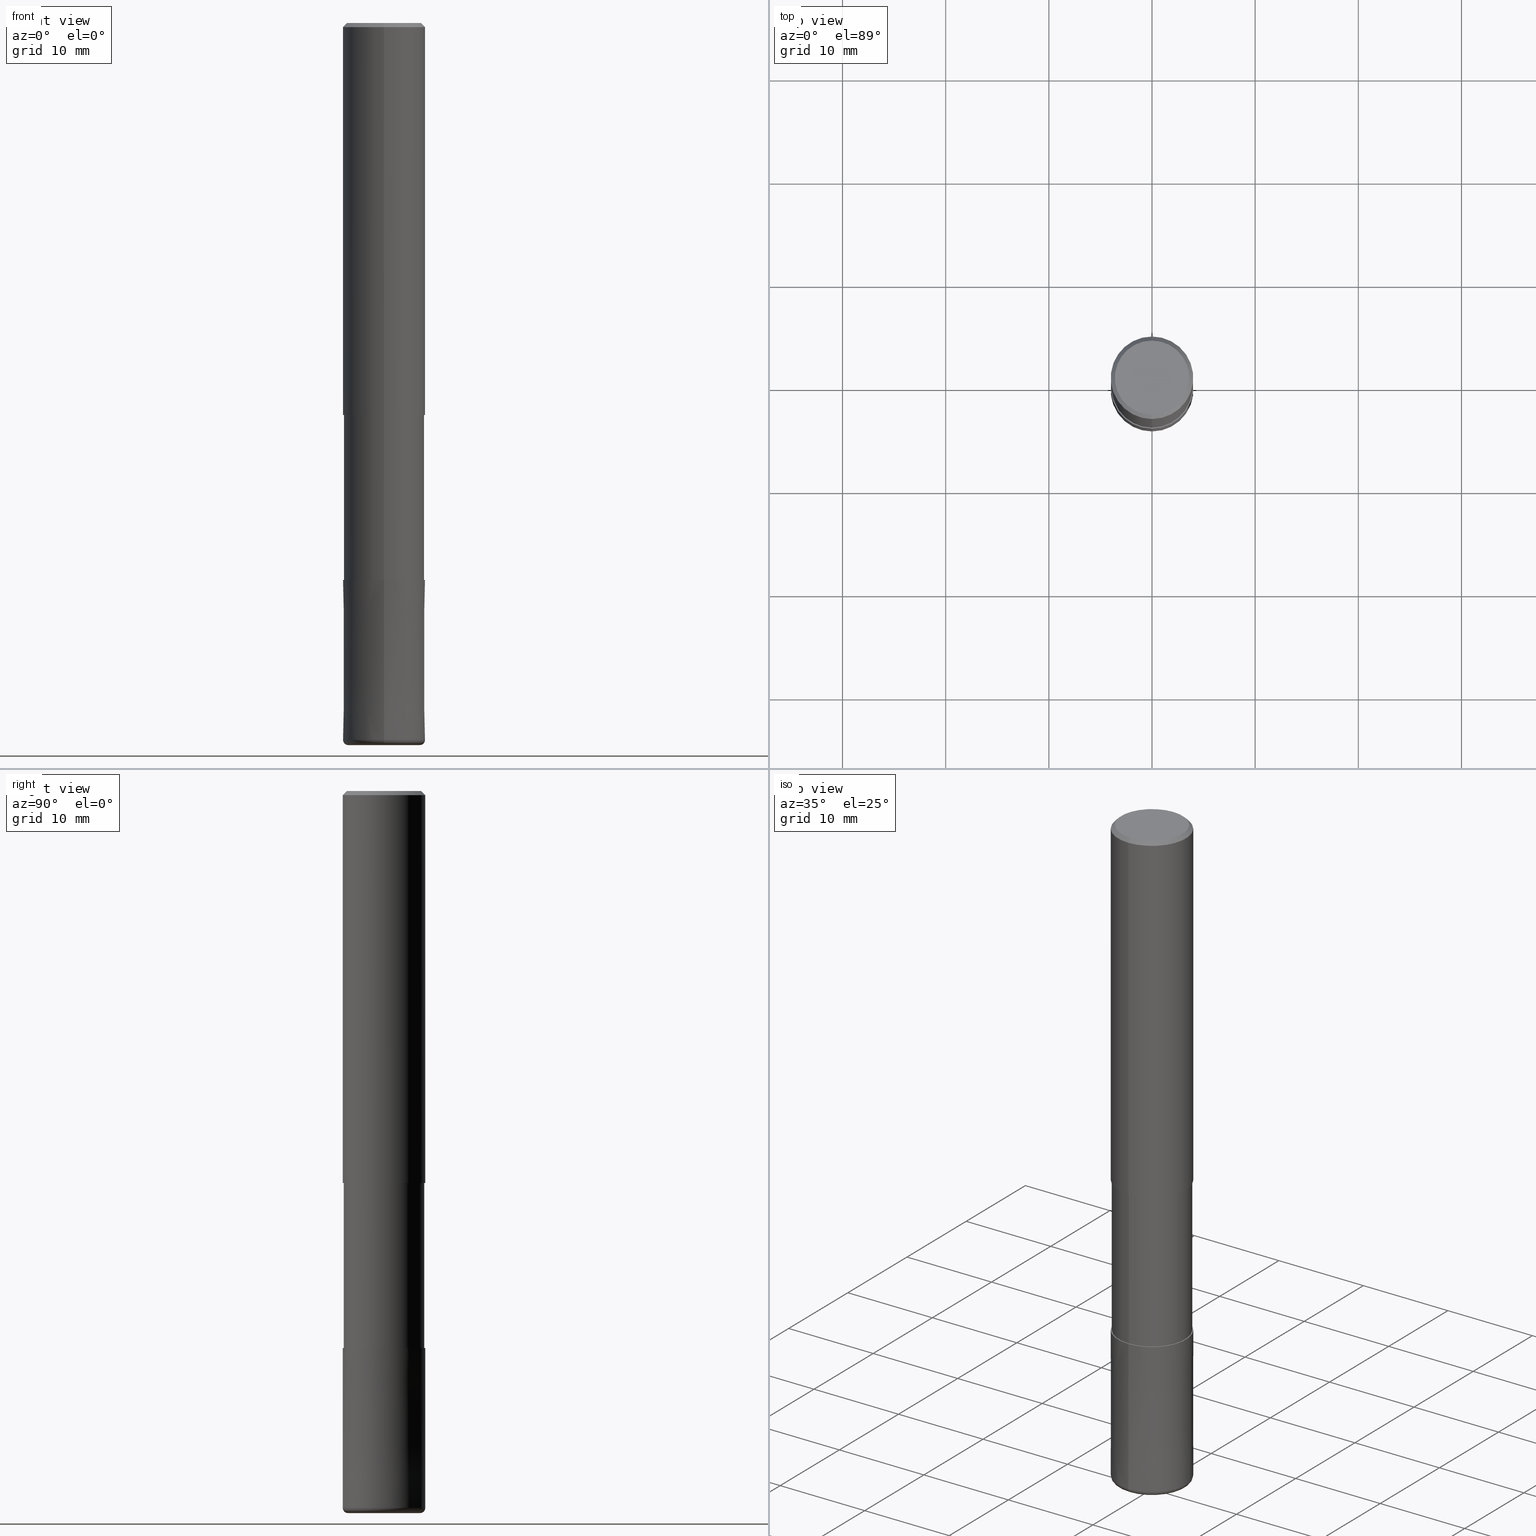
[diagram: canonical four-view strip — front | top / right | iso, engineering-drawing reading convention]
A machine part, canonical four-view strip (front | top / right | iso — engineering-drawing reading convention). The complete STEP part file that produces these views, byte-faithful:
ISO-10303-21;
HEADER;
FILE_DESCRIPTION(('no description'),'unknown implementation level');
FILE_NAME('CXLRS5080-05-32-Huellk.stp','  ',('CIMSOURCE GmbH'),('CADClick - KiM GmbH - www.kimweb.de'),'unknown preprocess','ACIS','unknown authorization');
FILE_SCHEMA(('automotive_design'));
ENDSEC;
DATA;
#1=MECHANICAL_DESIGN_GEOMETRIC_PRESENTATION_REPRESENTATION(' ',(#14,#15,#16,#17,#18,#19,#20,#21,#22,#23,#24,#25,#26,#27,#28,#29,#30,#31,#32,#33,#34,#35,#36,#37,#38,#39,#40,#41,#42,#43,#44,#45,#46,#47,#48,#49,#50,#51,#52,#53,#54,#55,#56,#57,#58,#59,#60,#61,#62,#63,#64,#65,#66,#67,#68,#69,#70,#71,#72,#73,#74,#75,#76,#77,#78,#79,#80,#81,#82,#83,#84,#85,#86,#87,#88,#89,#90,#91,#92,#93,#94,#95,#96,#97),#10);
#2=PRODUCT_DEFINITION_CONTEXT('',#98,'design');
#3=APPLICATION_PROTOCOL_DEFINITION('INTERNATIONAL STANDARD','automotive_design',1994,#98);
#4=PRODUCT_CATEGORY_RELATIONSHIP('NONE','NONE',#99,#100);
#5=SHAPE_DEFINITION_REPRESENTATION(#101,#102);
#6=PRODUCT_DEFINITION_CONTEXT('',#103,'design');
#7=APPLICATION_PROTOCOL_DEFINITION('INTERNATIONAL STANDARD','automotive_design',1994,#103);
#8=PRODUCT_CATEGORY_RELATIONSHIP('NONE','NONE',#104,#105);
#9=SHAPE_DEFINITION_REPRESENTATION(#106,#107);
#10= (GEOMETRIC_REPRESENTATION_CONTEXT(3)GLOBAL_UNCERTAINTY_ASSIGNED_CONTEXT((#110))GLOBAL_UNIT_ASSIGNED_CONTEXT((#112,#113,#114))REPRESENTATION_CONTEXT('NONE','WORKSPACE'));
#14=STYLED_ITEM('',(#116),#117);
#15=STYLED_ITEM('',(#118),#119);
#16=STYLED_ITEM('',(#120),#121);
#17=STYLED_ITEM('',(#122),#123);
#18=STYLED_ITEM('',(#124),#125);
#19=STYLED_ITEM('',(#126),#127);
#20=STYLED_ITEM('',(#128),#129);
#21=STYLED_ITEM('',(#130),#131);
#22=STYLED_ITEM('',(#132),#133);
#23=STYLED_ITEM('',(#134),#135);
#24=STYLED_ITEM('',(#136),#137);
#25=STYLED_ITEM('',(#138),#139);
#26=STYLED_ITEM('',(#140),#141);
#27=STYLED_ITEM('',(#142),#143);
#28=STYLED_ITEM('',(#144),#145);
#29=STYLED_ITEM('',(#146),#147);
#30=STYLED_ITEM('',(#148),#149);
#31=STYLED_ITEM('',(#150),#151);
#32=STYLED_ITEM('',(#152),#153);
#33=STYLED_ITEM('',(#154),#155);
#34=STYLED_ITEM('',(#156),#157);
#35=STYLED_ITEM('',(#158),#159);
#36=STYLED_ITEM('',(#160),#161);
#37=STYLED_ITEM('',(#162),#163);
#38=STYLED_ITEM('',(#164),#165);
#39=STYLED_ITEM('',(#166),#167);
#40=STYLED_ITEM('',(#168),#169);
#41=STYLED_ITEM('',(#170),#171);
#42=STYLED_ITEM('',(#172),#173);
#43=STYLED_ITEM('',(#174),#175);
#44=STYLED_ITEM('',(#176),#177);
#45=STYLED_ITEM('',(#178),#179);
#46=STYLED_ITEM('',(#180),#181);
#47=STYLED_ITEM('',(#182),#183);
#48=STYLED_ITEM('',(#184),#185);
#49=STYLED_ITEM('',(#186),#187);
#50=STYLED_ITEM('',(#188),#189);
#51=STYLED_ITEM('',(#190),#191);
#52=STYLED_ITEM('',(#192),#193);
#53=STYLED_ITEM('',(#194),#195);
#54=STYLED_ITEM('',(#196),#197);
#55=STYLED_ITEM('',(#198),#199);
#56=STYLED_ITEM('',(#200),#201);
#57=STYLED_ITEM('',(#202),#203);
#58=STYLED_ITEM('',(#204),#205);
#59=STYLED_ITEM('',(#206),#207);
#60=STYLED_ITEM('',(#208),#209);
#61=STYLED_ITEM('',(#210),#211);
#62=STYLED_ITEM('',(#212),#213);
#63=STYLED_ITEM('',(#214),#215);
#64=STYLED_ITEM('',(#216),#217);
#65=STYLED_ITEM('',(#218),#219);
#66=STYLED_ITEM('',(#220),#221);
#67=STYLED_ITEM('',(#222),#223);
#68=STYLED_ITEM('',(#224),#225);
#69=STYLED_ITEM('',(#226),#227);
#70=STYLED_ITEM('',(#228),#229);
#71=STYLED_ITEM('',(#230),#231);
#72=STYLED_ITEM('',(#232),#233);
#73=STYLED_ITEM('',(#234),#235);
#74=STYLED_ITEM('',(#236),#237);
#75=STYLED_ITEM('',(#238),#239);
#76=STYLED_ITEM('',(#240),#241);
#77=STYLED_ITEM('',(#242),#243);
#78=STYLED_ITEM('',(#244),#245);
#79=STYLED_ITEM('',(#246),#247);
#80=STYLED_ITEM('',(#248),#249);
#81=STYLED_ITEM('',(#250),#251);
#82=STYLED_ITEM('',(#252),#253);
#83=STYLED_ITEM('',(#254),#255);
#84=STYLED_ITEM('',(#256),#257);
#85=STYLED_ITEM('',(#258),#259);
#86=STYLED_ITEM('',(#260),#261);
#87=STYLED_ITEM('',(#262),#263);
#88=STYLED_ITEM('',(#264),#265);
#89=STYLED_ITEM('',(#266),#267);
#90=STYLED_ITEM('',(#268),#269);
#91=STYLED_ITEM('',(#270),#271);
#92=STYLED_ITEM('',(#272),#273);
#93=STYLED_ITEM('',(#274),#275);
#94=STYLED_ITEM('',(#276),#277);
#95=STYLED_ITEM('',(#278),#279);
#96=STYLED_ITEM('',(#280),#281);
#97=STYLED_ITEM('',(#282),#283);
#98=APPLICATION_CONTEXT(' ');
#99=PRODUCT_CATEGORY('part','NONE');
#100=PRODUCT_RELATED_PRODUCT_CATEGORY('detail',' ',(#284));
#101=PRODUCT_DEFINITION_SHAPE('NONE','NONE',#285);
#102=ADVANCED_BREP_SHAPE_REPRESENTATION('1',(#173,#286),#10);
#103=APPLICATION_CONTEXT(' ');
#104=PRODUCT_CATEGORY('part','NONE');
#105=PRODUCT_RELATED_PRODUCT_CATEGORY('detail',' ',(#287));
#106=PRODUCT_DEFINITION_SHAPE('NONE','NONE',#288);
#107=ADVANCED_BREP_SHAPE_REPRESENTATION('2',(#147,#289),#10);
#110=UNCERTAINTY_MEASURE_WITH_UNIT(LENGTH_MEASURE(1.0E-006),#112,'','');
#112= (CONVERSION_BASED_UNIT('MILLIMETRE',#292)LENGTH_UNIT()NAMED_UNIT(#295));
#113= (NAMED_UNIT(#297)PLANE_ANGLE_UNIT()SI_UNIT($,.RADIAN.));
#114= (NAMED_UNIT(#297)SOLID_ANGLE_UNIT()SI_UNIT($,.STERADIAN.));
#116=PRESENTATION_STYLE_ASSIGNMENT((#303));
#117=VERTEX_POINT('',#304);
#118=PRESENTATION_STYLE_ASSIGNMENT((#305));
#119=EDGE_CURVE('',#149,#197,#306,.T.);
#120=PRESENTATION_STYLE_ASSIGNMENT((#307));
#121=ADVANCED_FACE('',(#308),#309,.T.);
#122=PRESENTATION_STYLE_ASSIGNMENT((#310));
#123=VERTEX_POINT('',#311);
#124=PRESENTATION_STYLE_ASSIGNMENT((#312));
#125=VERTEX_POINT('',#313);
#126=PRESENTATION_STYLE_ASSIGNMENT((#314));
#127=VERTEX_POINT('',#315);
#128=PRESENTATION_STYLE_ASSIGNMENT((#316));
#129=VERTEX_POINT('',#317);
#130=PRESENTATION_STYLE_ASSIGNMENT((#318));
#131=EDGE_CURVE('',#279,#257,#319,.T.);
#132=PRESENTATION_STYLE_ASSIGNMENT((#320));
#133=ADVANCED_FACE('',(#321),#322,.T.);
#134=PRESENTATION_STYLE_ASSIGNMENT((#323));
#135=EDGE_CURVE('',#145,#239,#324,.T.);
#136=PRESENTATION_STYLE_ASSIGNMENT((#325));
#137=EDGE_CURVE('',#239,#231,#326,.T.);
#138=PRESENTATION_STYLE_ASSIGNMENT((#327));
#139=ADVANCED_FACE('',(#328),#329,.T.);
#140=PRESENTATION_STYLE_ASSIGNMENT((#330));
#141=EDGE_CURVE('',#227,#273,#331,.T.);
#142=PRESENTATION_STYLE_ASSIGNMENT((#332));
#143=EDGE_CURVE('',#153,#271,#333,.T.);
#144=PRESENTATION_STYLE_ASSIGNMENT((#334));
#145=VERTEX_POINT('',#335);
#146=PRESENTATION_STYLE_ASSIGNMENT((#336));
#147=MANIFOLD_SOLID_BREP('2',#337);
#148=PRESENTATION_STYLE_ASSIGNMENT((#338));
#149=VERTEX_POINT('',#339);
#150=PRESENTATION_STYLE_ASSIGNMENT((#340));
#151=ADVANCED_FACE('',(#341),#342,.T.);
#152=PRESENTATION_STYLE_ASSIGNMENT((#343));
#153=VERTEX_POINT('',#344);
#154=PRESENTATION_STYLE_ASSIGNMENT((#345));
#155=EDGE_CURVE('',#125,#123,#346,.T.);
#156=PRESENTATION_STYLE_ASSIGNMENT((#347));
#157=EDGE_CURVE('',#123,#117,#348,.T.);
#158=PRESENTATION_STYLE_ASSIGNMENT((#349));
#159=EDGE_CURVE('',#153,#197,#350,.T.);
#160=PRESENTATION_STYLE_ASSIGNMENT((#351));
#161=EDGE_CURVE('',#277,#201,#352,.T.);
#162=PRESENTATION_STYLE_ASSIGNMENT((#353));
#163=VERTEX_POINT('',#354);
#164=PRESENTATION_STYLE_ASSIGNMENT((#355));
#165=EDGE_CURVE('',#227,#277,#356,.T.);
#166=PRESENTATION_STYLE_ASSIGNMENT((#357));
#167=EDGE_CURVE('',#231,#171,#358,.T.);
#168=PRESENTATION_STYLE_ASSIGNMENT((#359));
#169=EDGE_CURVE('',#149,#271,#360,.T.);
#170=PRESENTATION_STYLE_ASSIGNMENT((#361));
#171=VERTEX_POINT('',#362);
#172=PRESENTATION_STYLE_ASSIGNMENT((#363));
#173=MANIFOLD_SOLID_BREP('1',#364);
#174=PRESENTATION_STYLE_ASSIGNMENT((#365));
#175=EDGE_CURVE('',#279,#163,#366,.T.);
#176=PRESENTATION_STYLE_ASSIGNMENT((#367));
#177=ADVANCED_FACE('',(#368),#369,.T.);
#178=PRESENTATION_STYLE_ASSIGNMENT((#370));
#179=ADVANCED_FACE('',(#371),#372,.T.);
#180=PRESENTATION_STYLE_ASSIGNMENT((#373));
#181=ADVANCED_FACE('',(#374),#375,.T.);
#182=PRESENTATION_STYLE_ASSIGNMENT((#376));
#183=EDGE_CURVE('',#129,#257,#377,.T.);
#184=PRESENTATION_STYLE_ASSIGNMENT((#378));
#185=EDGE_CURVE('',#197,#153,#379,.T.);
#186=PRESENTATION_STYLE_ASSIGNMENT((#380));
#187=EDGE_CURVE('',#211,#145,#381,.T.);
#188=PRESENTATION_STYLE_ASSIGNMENT((#382));
#189=EDGE_CURVE('',#129,#163,#383,.T.);
#190=PRESENTATION_STYLE_ASSIGNMENT((#384));
#191=ADVANCED_FACE('',(#385),#386,.T.);
#192=PRESENTATION_STYLE_ASSIGNMENT((#387));
#193=ADVANCED_FACE('',(#388),#389,.T.);
#194=PRESENTATION_STYLE_ASSIGNMENT((#390));
#195=ADVANCED_FACE('',(#391,#392),#393,.T.);
#196=PRESENTATION_STYLE_ASSIGNMENT((#394));
#197=VERTEX_POINT('',#395);
#198=PRESENTATION_STYLE_ASSIGNMENT((#396));
#199=EDGE_CURVE('',#127,#201,#397,.T.);
#200=PRESENTATION_STYLE_ASSIGNMENT((#398));
#201=VERTEX_POINT('',#399);
#202=PRESENTATION_STYLE_ASSIGNMENT((#400));
#203=EDGE_CURVE('',#273,#213,#401,.T.);
#204=PRESENTATION_STYLE_ASSIGNMENT((#402));
#205=EDGE_CURVE('',#277,#227,#403,.T.);
#206=PRESENTATION_STYLE_ASSIGNMENT((#404));
#207=EDGE_CURVE('',#127,#227,#405,.T.);
#208=PRESENTATION_STYLE_ASSIGNMENT((#406));
#209=ADVANCED_FACE('',(#407),#408,.F.);
#210=PRESENTATION_STYLE_ASSIGNMENT((#409));
#211=VERTEX_POINT('',#410);
#212=PRESENTATION_STYLE_ASSIGNMENT((#411));
#213=VERTEX_POINT('',#412);
#214=PRESENTATION_STYLE_ASSIGNMENT((#413));
#215=EDGE_CURVE('',#117,#123,#414,.T.);
#216=PRESENTATION_STYLE_ASSIGNMENT((#415));
#217=EDGE_CURVE('',#241,#239,#416,.T.);
#218=PRESENTATION_STYLE_ASSIGNMENT((#417));
#219=ADVANCED_FACE('',(#418),#419,.T.);
#220=PRESENTATION_STYLE_ASSIGNMENT((#420));
#221=EDGE_CURVE('',#145,#211,#421,.T.);
#222=PRESENTATION_STYLE_ASSIGNMENT((#422));
#223=ADVANCED_FACE('',(#423,#424),#425,.T.);
#224=PRESENTATION_STYLE_ASSIGNMENT((#426));
#225=ADVANCED_FACE('',(#427),#428,.T.);
#226=PRESENTATION_STYLE_ASSIGNMENT((#429));
#227=VERTEX_POINT('',#430);
#228=PRESENTATION_STYLE_ASSIGNMENT((#431));
#229=ADVANCED_FACE('',(#432),#433,.T.);
#230=PRESENTATION_STYLE_ASSIGNMENT((#434));
#231=VERTEX_POINT('',#435);
#232=PRESENTATION_STYLE_ASSIGNMENT((#436));
#233=EDGE_CURVE('',#231,#211,#437,.T.);
#234=PRESENTATION_STYLE_ASSIGNMENT((#438));
#235=EDGE_CURVE('',#257,#279,#439,.T.);
#236=PRESENTATION_STYLE_ASSIGNMENT((#440));
#237=ADVANCED_FACE('',(#441),#442,.T.);
#238=PRESENTATION_STYLE_ASSIGNMENT((#443));
#239=VERTEX_POINT('',#444);
#240=PRESENTATION_STYLE_ASSIGNMENT((#445));
#241=VERTEX_POINT('',#446);
#242=PRESENTATION_STYLE_ASSIGNMENT((#447));
#243=EDGE_CURVE('',#163,#129,#448,.T.);
#244=PRESENTATION_STYLE_ASSIGNMENT((#449));
#245=VERTEX_POINT('',#450);
#246=PRESENTATION_STYLE_ASSIGNMENT((#451));
#247=EDGE_CURVE('',#271,#149,#452,.T.);
#248=PRESENTATION_STYLE_ASSIGNMENT((#453));
#249=EDGE_CURVE('',#117,#245,#454,.T.);
#250=PRESENTATION_STYLE_ASSIGNMENT((#455));
#251=EDGE_CURVE('',#231,#239,#456,.T.);
#252=PRESENTATION_STYLE_ASSIGNMENT((#457));
#253=ADVANCED_FACE('',(#458),#459,.F.);
#254=PRESENTATION_STYLE_ASSIGNMENT((#460));
#255=ADVANCED_FACE('',(#461,#462),#463,.T.);
#256=PRESENTATION_STYLE_ASSIGNMENT((#464));
#257=VERTEX_POINT('',#465);
#258=PRESENTATION_STYLE_ASSIGNMENT((#466));
#259=ADVANCED_FACE('',(#467,#468),#469,.T.);
#260=PRESENTATION_STYLE_ASSIGNMENT((#470));
#261=EDGE_CURVE('',#245,#125,#471,.T.);
#262=PRESENTATION_STYLE_ASSIGNMENT((#472));
#263=EDGE_CURVE('',#213,#277,#473,.T.);
#264=PRESENTATION_STYLE_ASSIGNMENT((#474));
#265=EDGE_CURVE('',#241,#171,#475,.T.);
#266=PRESENTATION_STYLE_ASSIGNMENT((#476));
#267=ADVANCED_FACE('',(#477),#478,.T.);
#268=PRESENTATION_STYLE_ASSIGNMENT((#479));
#269=EDGE_CURVE('',#125,#245,#480,.T.);
#270=PRESENTATION_STYLE_ASSIGNMENT((#481));
#271=VERTEX_POINT('',#482);
#272=PRESENTATION_STYLE_ASSIGNMENT((#483));
#273=VERTEX_POINT('',#484);
#274=PRESENTATION_STYLE_ASSIGNMENT((#485));
#275=EDGE_CURVE('',#213,#273,#486,.T.);
#276=PRESENTATION_STYLE_ASSIGNMENT((#487));
#277=VERTEX_POINT('',#488);
#278=PRESENTATION_STYLE_ASSIGNMENT((#489));
#279=VERTEX_POINT('',#490);
#280=PRESENTATION_STYLE_ASSIGNMENT((#491));
#281=EDGE_CURVE('',#171,#241,#492,.T.);
#282=PRESENTATION_STYLE_ASSIGNMENT((#493));
#283=EDGE_CURVE('',#201,#127,#494,.T.);
#284=PRODUCT('1','1','PART-1-DESC',(#495));
#285=PRODUCT_DEFINITION('NONE','NONE',#496,#2);
#286=AXIS2_PLACEMENT_3D('',#497,#498,#499);
#287=PRODUCT('2','2','PART-2-DESC',(#500));
#288=PRODUCT_DEFINITION('NONE','NONE',#501,#6);
#289=AXIS2_PLACEMENT_3D('',#502,#503,#504);
#292=LENGTH_MEASURE_WITH_UNIT(LENGTH_MEASURE(1.0),#505);
#295=DIMENSIONAL_EXPONENTS(1.0,0.0,0.0,0.0,0.0,0.0,0.0);
#297=DIMENSIONAL_EXPONENTS(0.0,0.0,0.0,0.0,0.0,0.0,0.0);
#303=POINT_STYLE(' ',#506,POSITIVE_LENGTH_MEASURE(1.0E-006),#507);
#304=CARTESIAN_POINT('',(2.20429143688028E-016,-1.8,-69.9));
#305=CURVE_STYLE('',#508,POSITIVE_LENGTH_MEASURE(1.0E-006),#509);
#306=LINE('',#510,#511);
#307=SURFACE_STYLE_USAGE(.BOTH.,#512);
#308=FACE_OUTER_BOUND('',#513,.T.);
#309=PLANE('',#514);
#310=POINT_STYLE(' ',#515,POSITIVE_LENGTH_MEASURE(1.0E-006),#516);
#311=CARTESIAN_POINT('',(0.0,1.8,-69.9));
#312=POINT_STYLE(' ',#517,POSITIVE_LENGTH_MEASURE(1.0E-006),#518);
#313=CARTESIAN_POINT('',(0.0,1.8,-54.0));
#314=POINT_STYLE(' ',#519,POSITIVE_LENGTH_MEASURE(1.0E-006),#520);
#315=CARTESIAN_POINT('',(4.89842541528951E-016,-4.0,-38.0));
#316=POINT_STYLE(' ',#521,POSITIVE_LENGTH_MEASURE(1.0E-006),#522);
#317=CARTESIAN_POINT('',(0.0,1.8,-54.0));
#318=CURVE_STYLE('',#523,POSITIVE_LENGTH_MEASURE(1.0E-006),#524);
#319=CIRCLE('',#525,1.8);
#320=SURFACE_STYLE_USAGE(.BOTH.,#526);
#321=FACE_OUTER_BOUND('',#527,.T.);
#322=TOROIDAL_SURFACE('',#528,3.5,0.499999999999995);
#323=CURVE_STYLE('',#529,POSITIVE_LENGTH_MEASURE(1.0E-006),#530);
#324=LINE('',#531,#532);
#325=CURVE_STYLE('',#533,POSITIVE_LENGTH_MEASURE(1.0E-006),#534);
#326=CIRCLE('',#535,4.0);
#327=SURFACE_STYLE_USAGE(.BOTH.,#536);
#328=FACE_OUTER_BOUND('',#537,.T.);
#329=CYLINDRICAL_SURFACE('',#538,1.8);
#330=CURVE_STYLE('',#539,POSITIVE_LENGTH_MEASURE(1.0E-006),#540);
#331=LINE('',#541,#542);
#332=CURVE_STYLE('',#543,POSITIVE_LENGTH_MEASURE(1.0E-006),#544);
#333=LINE('',#545,#546);
#334=POINT_STYLE(' ',#547,POSITIVE_LENGTH_MEASURE(1.0E-006),#548);
#335=CARTESIAN_POINT('',(0.0,3.9999,-54.0));
#336=SURFACE_STYLE_USAGE(.BOTH.,#549);
#337=CLOSED_SHELL('',(#253,#193,#237,#255,#229,#133,#259,#209));
#338=POINT_STYLE(' ',#550,POSITIVE_LENGTH_MEASURE(1.0E-006),#551);
#339=CARTESIAN_POINT('',(0.0,3.89995,-38.0));
#340=SURFACE_STYLE_USAGE(.BOTH.,#552);
#341=FACE_OUTER_BOUND('',#553,.T.);
#342=CYLINDRICAL_SURFACE('',#554,4.0);
#343=POINT_STYLE(' ',#555,POSITIVE_LENGTH_MEASURE(1.0E-006),#556);
#344=CARTESIAN_POINT('',(4.77590354958958E-016,-3.89995,-54.0));
#345=CURVE_STYLE('',#557,POSITIVE_LENGTH_MEASURE(1.0E-006),#558);
#346=LINE('',#559,#560);
#347=CURVE_STYLE('',#561,POSITIVE_LENGTH_MEASURE(1.0E-006),#562);
#348=CIRCLE('',#563,1.8);
#349=CURVE_STYLE('',#564,POSITIVE_LENGTH_MEASURE(1.0E-006),#565);
#350=CIRCLE('',#566,3.89995);
#351=CURVE_STYLE('',#567,POSITIVE_LENGTH_MEASURE(1.0E-006),#568);
#352=LINE('',#569,#570);
#353=POINT_STYLE(' ',#571,POSITIVE_LENGTH_MEASURE(1.0E-006),#572);
#354=CARTESIAN_POINT('',(2.20429143688028E-016,-1.8,-54.0));
#355=CURVE_STYLE('',#573,POSITIVE_LENGTH_MEASURE(1.0E-006),#574);
#356=CIRCLE('',#575,4.0);
#357=CURVE_STYLE('',#576,POSITIVE_LENGTH_MEASURE(1.0E-006),#577);
#358=CIRCLE('',#578,0.499999999999995);
#359=CURVE_STYLE('',#579,POSITIVE_LENGTH_MEASURE(1.0E-006),#580);
#360=CIRCLE('',#581,3.89995);
#361=POINT_STYLE(' ',#582,POSITIVE_LENGTH_MEASURE(1.0E-006),#583);
#362=CARTESIAN_POINT('',(4.28612223837832E-016,-3.5,-70.0));
#363=SURFACE_STYLE_USAGE(.BOTH.,#584);
#364=CLOSED_SHELL('',(#139,#267,#151,#191,#223,#177,#179,#181,#225,#195,#219,#121));
#365=CURVE_STYLE('',#585,POSITIVE_LENGTH_MEASURE(1.0E-006),#586);
#366=LINE('',#587,#588);
#367=SURFACE_STYLE_USAGE(.BOTH.,#589);
#368=FACE_OUTER_BOUND('',#590,.T.);
#369=PLANE('',#591);
#370=SURFACE_STYLE_USAGE(.BOTH.,#592);
#371=FACE_OUTER_BOUND('',#593,.T.);
#372=CONICAL_SURFACE('',#594,3.8,0.78539816339745);
#373=SURFACE_STYLE_USAGE(.BOTH.,#595);
#374=FACE_OUTER_BOUND('',#596,.T.);
#375=CYLINDRICAL_SURFACE('',#597,4.0);
#376=CURVE_STYLE('',#598,POSITIVE_LENGTH_MEASURE(1.0E-006),#599);
#377=LINE('',#600,#601);
#378=CURVE_STYLE('',#602,POSITIVE_LENGTH_MEASURE(1.0E-006),#603);
#379=CIRCLE('',#604,3.89995);
#380=CURVE_STYLE('',#605,POSITIVE_LENGTH_MEASURE(1.0E-006),#606);
#381=CIRCLE('',#607,3.9999);
#382=CURVE_STYLE('',#608,POSITIVE_LENGTH_MEASURE(1.0E-006),#609);
#383=CIRCLE('',#610,1.8);
#384=SURFACE_STYLE_USAGE(.BOTH.,#611);
#385=FACE_OUTER_BOUND('',#612,.T.);
#386=CONICAL_SURFACE('',#613,3.8,0.78539816339745);
#387=SURFACE_STYLE_USAGE(.BOTH.,#614);
#388=FACE_OUTER_BOUND('',#615,.T.);
#389=TOROIDAL_SURFACE('',#616,3.5,0.499999999999995);
#390=SURFACE_STYLE_USAGE(.BOTH.,#617);
#391=FACE_BOUND('',#618,.T.);
#392=FACE_OUTER_BOUND('',#619,.T.);
#393=PLANE('',#620);
#394=POINT_STYLE(' ',#621,POSITIVE_LENGTH_MEASURE(1.0E-006),#622);
#395=CARTESIAN_POINT('',(0.0,3.89995,-54.0));
#396=CURVE_STYLE('',#623,POSITIVE_LENGTH_MEASURE(1.0E-006),#624);
#397=CIRCLE('',#625,4.0);
#398=POINT_STYLE(' ',#626,POSITIVE_LENGTH_MEASURE(1.0E-006),#627);
#399=CARTESIAN_POINT('',(0.0,4.0,-38.0));
#400=CURVE_STYLE('',#628,POSITIVE_LENGTH_MEASURE(1.0E-006),#629);
#401=CIRCLE('',#630,3.6);
#402=CURVE_STYLE('',#631,POSITIVE_LENGTH_MEASURE(1.0E-006),#632);
#403=CIRCLE('',#633,4.0);
#404=CURVE_STYLE('',#634,POSITIVE_LENGTH_MEASURE(1.0E-006),#635);
#405=LINE('',#636,#637);
#406=SURFACE_STYLE_USAGE(.BOTH.,#638);
#407=FACE_OUTER_BOUND('',#639,.T.);
#408=CYLINDRICAL_SURFACE('',#640,1.8);
#409=POINT_STYLE(' ',#641,POSITIVE_LENGTH_MEASURE(1.0E-006),#642);
#410=CARTESIAN_POINT('',(4.89830295465413E-016,-3.9999,-54.0));
#411=POINT_STYLE(' ',#643,POSITIVE_LENGTH_MEASURE(1.0E-006),#644);
#412=CARTESIAN_POINT('',(0.0,3.6,0.0));
#413=CURVE_STYLE('',#645,POSITIVE_LENGTH_MEASURE(1.0E-006),#646);
#414=CIRCLE('',#647,1.8);
#415=CURVE_STYLE('',#648,POSITIVE_LENGTH_MEASURE(1.0E-006),#649);
#416=CIRCLE('',#650,0.499999999999995);
#417=SURFACE_STYLE_USAGE(.BOTH.,#651);
#418=FACE_OUTER_BOUND('',#652,.T.);
#419=CYLINDRICAL_SURFACE('',#653,1.8);
#420=CURVE_STYLE('',#654,POSITIVE_LENGTH_MEASURE(1.0E-006),#655);
#421=CIRCLE('',#656,3.9999);
#422=SURFACE_STYLE_USAGE(.BOTH.,#657);
#423=FACE_OUTER_BOUND('',#658,.T.);
#424=FACE_BOUND('',#659,.T.);
#425=PLANE('',#660);
#426=SURFACE_STYLE_USAGE(.BOTH.,#661);
#427=FACE_OUTER_BOUND('',#662,.T.);
#428=CYLINDRICAL_SURFACE('',#663,3.89995);
#429=POINT_STYLE(' ',#664,POSITIVE_LENGTH_MEASURE(1.0E-006),#665);
#430=CARTESIAN_POINT('',(4.89842541528951E-016,-4.0,-0.399999999999999));
#431=SURFACE_STYLE_USAGE(.BOTH.,#666);
#432=FACE_OUTER_BOUND('',#667,.T.);
#433=CONICAL_SURFACE('',#668,3.99995,6.45161290314991E-006);
#434=POINT_STYLE(' ',#669,POSITIVE_LENGTH_MEASURE(1.0E-006),#670);
#435=CARTESIAN_POINT('',(4.89842541528951E-016,-4.0,-69.5));
#436=CURVE_STYLE('',#671,POSITIVE_LENGTH_MEASURE(1.0E-006),#672);
#437=LINE('',#673,#674);
#438=CURVE_STYLE('',#675,POSITIVE_LENGTH_MEASURE(1.0E-006),#676);
#439=CIRCLE('',#677,1.8);
#440=SURFACE_STYLE_USAGE(.BOTH.,#678);
#441=FACE_OUTER_BOUND('',#679,.T.);
#442=CONICAL_SURFACE('',#680,3.99995,6.45161290314991E-006);
#443=POINT_STYLE(' ',#681,POSITIVE_LENGTH_MEASURE(1.0E-006),#682);
#444=CARTESIAN_POINT('',(0.0,4.0,-69.5));
#445=POINT_STYLE(' ',#683,POSITIVE_LENGTH_MEASURE(1.0E-006),#684);
#446=CARTESIAN_POINT('',(0.0,3.5,-70.0));
#447=CURVE_STYLE('',#685,POSITIVE_LENGTH_MEASURE(1.0E-006),#686);
#448=CIRCLE('',#687,1.8);
#449=POINT_STYLE(' ',#688,POSITIVE_LENGTH_MEASURE(1.0E-006),#689);
#450=CARTESIAN_POINT('',(2.20429143688028E-016,-1.8,-54.0));
#451=CURVE_STYLE('',#690,POSITIVE_LENGTH_MEASURE(1.0E-006),#691);
#452=CIRCLE('',#692,3.89995);
#453=CURVE_STYLE('',#693,POSITIVE_LENGTH_MEASURE(1.0E-006),#694);
#454=LINE('',#695,#696);
#455=CURVE_STYLE('',#697,POSITIVE_LENGTH_MEASURE(1.0E-006),#698);
#456=CIRCLE('',#699,4.0);
#457=SURFACE_STYLE_USAGE(.BOTH.,#700);
#458=FACE_OUTER_BOUND('',#701,.T.);
#459=CYLINDRICAL_SURFACE('',#702,1.8);
#460=SURFACE_STYLE_USAGE(.BOTH.,#703);
#461=FACE_OUTER_BOUND('',#704,.T.);
#462=FACE_BOUND('',#705,.T.);
#463=PLANE('',#706);
#464=POINT_STYLE(' ',#707,POSITIVE_LENGTH_MEASURE(1.0E-006),#708);
#465=CARTESIAN_POINT('',(0.0,1.8,-70.0));
#466=SURFACE_STYLE_USAGE(.BOTH.,#709);
#467=FACE_BOUND('',#710,.T.);
#468=FACE_OUTER_BOUND('',#711,.T.);
#469=PLANE('',#712);
#470=CURVE_STYLE('',#713,POSITIVE_LENGTH_MEASURE(1.0E-006),#714);
#471=CIRCLE('',#715,1.8);
#472=CURVE_STYLE('',#716,POSITIVE_LENGTH_MEASURE(1.0E-006),#717);
#473=LINE('',#718,#719);
#474=CURVE_STYLE('',#720,POSITIVE_LENGTH_MEASURE(1.0E-006),#721);
#475=CIRCLE('',#722,3.5);
#476=SURFACE_STYLE_USAGE(.BOTH.,#723);
#477=FACE_OUTER_BOUND('',#724,.T.);
#478=CYLINDRICAL_SURFACE('',#725,3.89995);
#479=CURVE_STYLE('',#726,POSITIVE_LENGTH_MEASURE(1.0E-006),#727);
#480=CIRCLE('',#728,1.8);
#481=POINT_STYLE(' ',#729,POSITIVE_LENGTH_MEASURE(1.0E-006),#730);
#482=CARTESIAN_POINT('',(4.77590354958958E-016,-3.89995,-38.0));
#483=POINT_STYLE(' ',#731,POSITIVE_LENGTH_MEASURE(1.0E-006),#732);
#484=CARTESIAN_POINT('',(4.40858287376056E-016,-3.6,0.0));
#485=CURVE_STYLE('',#733,POSITIVE_LENGTH_MEASURE(1.0E-006),#734);
#486=CIRCLE('',#735,3.6);
#487=POINT_STYLE(' ',#736,POSITIVE_LENGTH_MEASURE(1.0E-006),#737);
#488=CARTESIAN_POINT('',(0.0,4.0,-0.399999999999999));
#489=POINT_STYLE(' ',#738,POSITIVE_LENGTH_MEASURE(1.0E-006),#739);
#490=CARTESIAN_POINT('',(2.20429143688028E-016,-1.8,-70.0));
#491=CURVE_STYLE('',#740,POSITIVE_LENGTH_MEASURE(1.0E-006),#741);
#492=CIRCLE('',#742,3.5);
#493=CURVE_STYLE('',#743,POSITIVE_LENGTH_MEASURE(1.0E-006),#744);
#494=CIRCLE('',#745,4.0);
#495=PRODUCT_CONTEXT('',#98,'mechanical');
#496=PRODUCT_DEFINITION_FORMATION_WITH_SPECIFIED_SOURCE(' ','NONE',#284,.NOT_KNOWN.);
#497=CARTESIAN_POINT('',(0.0,0.0,0.0));
#498=DIRECTION('',(0.0,0.0,1.0));
#499=DIRECTION('',(1.0,0.0,0.0));
#500=PRODUCT_CONTEXT('',#103,'mechanical');
#501=PRODUCT_DEFINITION_FORMATION_WITH_SPECIFIED_SOURCE(' ','NONE',#287,.NOT_KNOWN.);
#502=CARTESIAN_POINT('',(0.0,0.0,0.0));
#503=DIRECTION('',(0.0,0.0,1.0));
#504=DIRECTION('',(1.0,0.0,0.0));
#505= (NAMED_UNIT(#295)LENGTH_UNIT()SI_UNIT(.MILLI.,.METRE.));
#506=PRE_DEFINED_MARKER('');
#507=COLOUR_RGB('',0.498039215803146,0.498039215803146,0.498039215803146);
#508=DRAUGHTING_PRE_DEFINED_CURVE_FONT('continuous');
#509=COLOUR_RGB('',0.498039215803146,0.498039215803146,0.498039215803146);
#510=CARTESIAN_POINT('',(-4.77590354958958E-016,3.89995,-46.0));
#511=VECTOR('',#747,1.0);
#512=SURFACE_SIDE_STYLE('',(#748));
#513=EDGE_LOOP('',(#749,#750));
#514=AXIS2_PLACEMENT_3D('',#751,#752,#753);
#515=PRE_DEFINED_MARKER('');
#516=COLOUR_RGB('',0.498039215803146,0.498039215803146,0.498039215803146);
#517=PRE_DEFINED_MARKER('');
#518=COLOUR_RGB('',0.498039215803146,0.498039215803146,0.498039215803146);
#519=PRE_DEFINED_MARKER('');
#520=COLOUR_RGB('',0.498039215803146,0.498039215803146,0.498039215803146);
#521=PRE_DEFINED_MARKER('');
#522=COLOUR_RGB('',0.800000011920929,0.800000011920929,0.800000011920929);
#523=DRAUGHTING_PRE_DEFINED_CURVE_FONT('continuous');
#524=COLOUR_RGB('',0.800000011920929,0.800000011920929,0.800000011920929);
#525=AXIS2_PLACEMENT_3D('',#754,#755,#756);
#526=SURFACE_SIDE_STYLE('',(#757));
#527=EDGE_LOOP('',(#758,#759,#760,#761));
#528=AXIS2_PLACEMENT_3D('',#762,#763,#764);
#529=DRAUGHTING_PRE_DEFINED_CURVE_FONT('continuous');
#530=COLOUR_RGB('',0.800000011920929,0.800000011920929,0.800000011920929);
#531=CARTESIAN_POINT('',(-4.89836418497182E-016,3.99995,-61.75));
#532=VECTOR('',#765,1.0);
#533=DRAUGHTING_PRE_DEFINED_CURVE_FONT('continuous');
#534=COLOUR_RGB('',0.800000011920929,0.800000011920929,0.800000011920929);
#535=AXIS2_PLACEMENT_3D('',#766,#767,#768);
#536=SURFACE_SIDE_STYLE('',(#769));
#537=EDGE_LOOP('',(#770,#771,#772,#773));
#538=AXIS2_PLACEMENT_3D('',#774,#775,#776);
#539=DRAUGHTING_PRE_DEFINED_CURVE_FONT('continuous');
#540=COLOUR_RGB('',0.498039215803146,0.498039215803146,0.498039215803146);
#541=CARTESIAN_POINT('',(4.65350414452503E-016,-3.8,-0.199999999999996));
#542=VECTOR('',#777,1.0);
#543=DRAUGHTING_PRE_DEFINED_CURVE_FONT('continuous');
#544=COLOUR_RGB('',0.498039215803146,0.498039215803146,0.498039215803146);
#545=CARTESIAN_POINT('',(4.77590354958958E-016,-3.89995,-46.0));
#546=VECTOR('',#778,1.0);
#547=PRE_DEFINED_MARKER('');
#548=COLOUR_RGB('',0.800000011920929,0.800000011920929,0.800000011920929);
#549=SURFACE_SIDE_STYLE('',(#779));
#550=PRE_DEFINED_MARKER('');
#551=COLOUR_RGB('',0.498039215803146,0.498039215803146,0.498039215803146);
#552=SURFACE_SIDE_STYLE('',(#780));
#553=EDGE_LOOP('',(#781,#782,#783,#784));
#554=AXIS2_PLACEMENT_3D('',#785,#786,#787);
#555=PRE_DEFINED_MARKER('');
#556=COLOUR_RGB('',0.498039215803146,0.498039215803146,0.498039215803146);
#557=DRAUGHTING_PRE_DEFINED_CURVE_FONT('continuous');
#558=COLOUR_RGB('',0.498039215803146,0.498039215803146,0.498039215803146);
#559=CARTESIAN_POINT('',(-2.20429143688028E-016,1.8,-61.95));
#560=VECTOR('',#788,1.0);
#561=DRAUGHTING_PRE_DEFINED_CURVE_FONT('continuous');
#562=COLOUR_RGB('',0.498039215803146,0.498039215803146,0.498039215803146);
#563=AXIS2_PLACEMENT_3D('',#789,#790,#791);
#564=DRAUGHTING_PRE_DEFINED_CURVE_FONT('continuous');
#565=COLOUR_RGB('',0.498039215803146,0.498039215803146,0.498039215803146);
#566=AXIS2_PLACEMENT_3D('',#792,#793,#794);
#567=DRAUGHTING_PRE_DEFINED_CURVE_FONT('continuous');
#568=COLOUR_RGB('',0.498039215803146,0.498039215803146,0.498039215803146);
#569=CARTESIAN_POINT('',(-4.89842541528951E-016,4.0,-19.2));
#570=VECTOR('',#795,1.0);
#571=PRE_DEFINED_MARKER('');
#572=COLOUR_RGB('',0.800000011920929,0.800000011920929,0.800000011920929);
#573=DRAUGHTING_PRE_DEFINED_CURVE_FONT('continuous');
#574=COLOUR_RGB('',0.498039215803146,0.498039215803146,0.498039215803146);
#575=AXIS2_PLACEMENT_3D('',#796,#797,#798);
#576=DRAUGHTING_PRE_DEFINED_CURVE_FONT('continuous');
#577=COLOUR_RGB('',0.800000011920929,0.800000011920929,0.800000011920929);
#578=AXIS2_PLACEMENT_3D('',#799,#800,#801);
#579=DRAUGHTING_PRE_DEFINED_CURVE_FONT('continuous');
#580=COLOUR_RGB('',0.498039215803146,0.498039215803146,0.498039215803146);
#581=AXIS2_PLACEMENT_3D('',#802,#803,#804);
#582=PRE_DEFINED_MARKER('');
#583=COLOUR_RGB('',0.800000011920929,0.800000011920929,0.800000011920929);
#584=SURFACE_SIDE_STYLE('',(#805));
#585=DRAUGHTING_PRE_DEFINED_CURVE_FONT('continuous');
#586=COLOUR_RGB('',0.800000011920929,0.800000011920929,0.800000011920929);
#587=CARTESIAN_POINT('',(2.20429143688028E-016,-1.8,-62.0));
#588=VECTOR('',#806,1.0);
#589=SURFACE_SIDE_STYLE('',(#807));
#590=EDGE_LOOP('',(#808,#809));
#591=AXIS2_PLACEMENT_3D('',#810,#811,#812);
#592=SURFACE_SIDE_STYLE('',(#813));
#593=EDGE_LOOP('',(#814,#815,#816,#817));
#594=AXIS2_PLACEMENT_3D('',#818,#819,#820);
#595=SURFACE_SIDE_STYLE('',(#821));
#596=EDGE_LOOP('',(#822,#823,#824,#825));
#597=AXIS2_PLACEMENT_3D('',#826,#827,#828);
#598=DRAUGHTING_PRE_DEFINED_CURVE_FONT('continuous');
#599=COLOUR_RGB('',0.800000011920929,0.800000011920929,0.800000011920929);
#600=CARTESIAN_POINT('',(-2.20429143688028E-016,1.8,-62.0));
#601=VECTOR('',#829,1.0);
#602=DRAUGHTING_PRE_DEFINED_CURVE_FONT('continuous');
#603=COLOUR_RGB('',0.498039215803146,0.498039215803146,0.498039215803146);
#604=AXIS2_PLACEMENT_3D('',#830,#831,#832);
#605=DRAUGHTING_PRE_DEFINED_CURVE_FONT('continuous');
#606=COLOUR_RGB('',0.800000011920929,0.800000011920929,0.800000011920929);
#607=AXIS2_PLACEMENT_3D('',#833,#834,#835);
#608=DRAUGHTING_PRE_DEFINED_CURVE_FONT('continuous');
#609=COLOUR_RGB('',0.800000011920929,0.800000011920929,0.800000011920929);
#610=AXIS2_PLACEMENT_3D('',#836,#837,#838);
#611=SURFACE_SIDE_STYLE('',(#839));
#612=EDGE_LOOP('',(#840,#841,#842,#843));
#613=AXIS2_PLACEMENT_3D('',#844,#845,#846);
#614=SURFACE_SIDE_STYLE('',(#847));
#615=EDGE_LOOP('',(#848,#849,#850,#851));
#616=AXIS2_PLACEMENT_3D('',#852,#853,#854);
#617=SURFACE_SIDE_STYLE('',(#855));
#618=EDGE_LOOP('',(#856,#857));
#619=EDGE_LOOP('',(#858,#859));
#620=AXIS2_PLACEMENT_3D('',#860,#861,#862);
#621=PRE_DEFINED_MARKER('');
#622=COLOUR_RGB('',0.498039215803146,0.498039215803146,0.498039215803146);
#623=DRAUGHTING_PRE_DEFINED_CURVE_FONT('continuous');
#624=COLOUR_RGB('',0.498039215803146,0.498039215803146,0.498039215803146);
#625=AXIS2_PLACEMENT_3D('',#863,#864,#865);
#626=PRE_DEFINED_MARKER('');
#627=COLOUR_RGB('',0.498039215803146,0.498039215803146,0.498039215803146);
#628=DRAUGHTING_PRE_DEFINED_CURVE_FONT('continuous');
#629=COLOUR_RGB('',0.498039215803146,0.498039215803146,0.498039215803146);
#630=AXIS2_PLACEMENT_3D('',#866,#867,#868);
#631=DRAUGHTING_PRE_DEFINED_CURVE_FONT('continuous');
#632=COLOUR_RGB('',0.498039215803146,0.498039215803146,0.498039215803146);
#633=AXIS2_PLACEMENT_3D('',#869,#870,#871);
#634=DRAUGHTING_PRE_DEFINED_CURVE_FONT('continuous');
#635=COLOUR_RGB('',0.498039215803146,0.498039215803146,0.498039215803146);
#636=CARTESIAN_POINT('',(4.89842541528951E-016,-4.0,-19.2));
#637=VECTOR('',#872,1.0);
#638=SURFACE_SIDE_STYLE('',(#873));
#639=EDGE_LOOP('',(#874,#875,#876,#877));
#640=AXIS2_PLACEMENT_3D('',#878,#879,#880);
#641=PRE_DEFINED_MARKER('');
#642=COLOUR_RGB('',0.800000011920929,0.800000011920929,0.800000011920929);
#643=PRE_DEFINED_MARKER('');
#644=COLOUR_RGB('',0.498039215803146,0.498039215803146,0.498039215803146);
#645=DRAUGHTING_PRE_DEFINED_CURVE_FONT('continuous');
#646=COLOUR_RGB('',0.498039215803146,0.498039215803146,0.498039215803146);
#647=AXIS2_PLACEMENT_3D('',#881,#882,#883);
#648=DRAUGHTING_PRE_DEFINED_CURVE_FONT('continuous');
#649=COLOUR_RGB('',0.800000011920929,0.800000011920929,0.800000011920929);
#650=AXIS2_PLACEMENT_3D('',#884,#885,#886);
#651=SURFACE_SIDE_STYLE('',(#887));
#652=EDGE_LOOP('',(#888,#889,#890,#891));
#653=AXIS2_PLACEMENT_3D('',#892,#893,#894);
#654=DRAUGHTING_PRE_DEFINED_CURVE_FONT('continuous');
#655=COLOUR_RGB('',0.800000011920929,0.800000011920929,0.800000011920929);
#656=AXIS2_PLACEMENT_3D('',#895,#896,#897);
#657=SURFACE_SIDE_STYLE('',(#898));
#658=EDGE_LOOP('',(#899,#900));
#659=EDGE_LOOP('',(#901,#902));
#660=AXIS2_PLACEMENT_3D('',#903,#904,#905);
#661=SURFACE_SIDE_STYLE('',(#906));
#662=EDGE_LOOP('',(#907,#908,#909,#910));
#663=AXIS2_PLACEMENT_3D('',#911,#912,#913);
#664=PRE_DEFINED_MARKER('');
#665=COLOUR_RGB('',0.498039215803146,0.498039215803146,0.498039215803146);
#666=SURFACE_SIDE_STYLE('',(#914));
#667=EDGE_LOOP('',(#915,#916,#917,#918));
#668=AXIS2_PLACEMENT_3D('',#919,#920,#921);
#669=PRE_DEFINED_MARKER('');
#670=COLOUR_RGB('',0.800000011920929,0.800000011920929,0.800000011920929);
#671=DRAUGHTING_PRE_DEFINED_CURVE_FONT('continuous');
#672=COLOUR_RGB('',0.800000011920929,0.800000011920929,0.800000011920929);
#673=CARTESIAN_POINT('',(4.89836418497182E-016,-3.99995,-61.75));
#674=VECTOR('',#922,1.0);
#675=DRAUGHTING_PRE_DEFINED_CURVE_FONT('continuous');
#676=COLOUR_RGB('',0.800000011920929,0.800000011920929,0.800000011920929);
#677=AXIS2_PLACEMENT_3D('',#923,#924,#925);
#678=SURFACE_SIDE_STYLE('',(#926));
#679=EDGE_LOOP('',(#927,#928,#929,#930));
#680=AXIS2_PLACEMENT_3D('',#931,#932,#933);
#681=PRE_DEFINED_MARKER('');
#682=COLOUR_RGB('',0.800000011920929,0.800000011920929,0.800000011920929);
#683=PRE_DEFINED_MARKER('');
#684=COLOUR_RGB('',0.800000011920929,0.800000011920929,0.800000011920929);
#685=DRAUGHTING_PRE_DEFINED_CURVE_FONT('continuous');
#686=COLOUR_RGB('',0.800000011920929,0.800000011920929,0.800000011920929);
#687=AXIS2_PLACEMENT_3D('',#934,#935,#936);
#688=PRE_DEFINED_MARKER('');
#689=COLOUR_RGB('',0.498039215803146,0.498039215803146,0.498039215803146);
#690=DRAUGHTING_PRE_DEFINED_CURVE_FONT('continuous');
#691=COLOUR_RGB('',0.498039215803146,0.498039215803146,0.498039215803146);
#692=AXIS2_PLACEMENT_3D('',#937,#938,#939);
#693=DRAUGHTING_PRE_DEFINED_CURVE_FONT('continuous');
#694=COLOUR_RGB('',0.498039215803146,0.498039215803146,0.498039215803146);
#695=CARTESIAN_POINT('',(2.20429143688028E-016,-1.8,-61.95));
#696=VECTOR('',#940,1.0);
#697=DRAUGHTING_PRE_DEFINED_CURVE_FONT('continuous');
#698=COLOUR_RGB('',0.800000011920929,0.800000011920929,0.800000011920929);
#699=AXIS2_PLACEMENT_3D('',#941,#942,#943);
#700=SURFACE_SIDE_STYLE('',(#944));
#701=EDGE_LOOP('',(#945,#946,#947,#948));
#702=AXIS2_PLACEMENT_3D('',#949,#950,#951);
#703=SURFACE_SIDE_STYLE('',(#952));
#704=EDGE_LOOP('',(#953,#954));
#705=EDGE_LOOP('',(#955,#956));
#706=AXIS2_PLACEMENT_3D('',#957,#958,#959);
#707=PRE_DEFINED_MARKER('');
#708=COLOUR_RGB('',0.800000011920929,0.800000011920929,0.800000011920929);
#709=SURFACE_SIDE_STYLE('',(#960));
#710=EDGE_LOOP('',(#961,#962));
#711=EDGE_LOOP('',(#963,#964));
#712=AXIS2_PLACEMENT_3D('',#965,#966,#967);
#713=DRAUGHTING_PRE_DEFINED_CURVE_FONT('continuous');
#714=COLOUR_RGB('',0.498039215803146,0.498039215803146,0.498039215803146);
#715=AXIS2_PLACEMENT_3D('',#968,#969,#970);
#716=DRAUGHTING_PRE_DEFINED_CURVE_FONT('continuous');
#717=COLOUR_RGB('',0.498039215803146,0.498039215803146,0.498039215803146);
#718=CARTESIAN_POINT('',(-4.65350414452503E-016,3.8,-0.199999999999996));
#719=VECTOR('',#971,1.0);
#720=DRAUGHTING_PRE_DEFINED_CURVE_FONT('continuous');
#721=COLOUR_RGB('',0.800000011920929,0.800000011920929,0.800000011920929);
#722=AXIS2_PLACEMENT_3D('',#972,#973,#974);
#723=SURFACE_SIDE_STYLE('',(#975));
#724=EDGE_LOOP('',(#976,#977,#978,#979));
#725=AXIS2_PLACEMENT_3D('',#980,#981,#982);
#726=DRAUGHTING_PRE_DEFINED_CURVE_FONT('continuous');
#727=COLOUR_RGB('',0.498039215803146,0.498039215803146,0.498039215803146);
#728=AXIS2_PLACEMENT_3D('',#983,#984,#985);
#729=PRE_DEFINED_MARKER('');
#730=COLOUR_RGB('',0.498039215803146,0.498039215803146,0.498039215803146);
#731=PRE_DEFINED_MARKER('');
#732=COLOUR_RGB('',0.498039215803146,0.498039215803146,0.498039215803146);
#733=DRAUGHTING_PRE_DEFINED_CURVE_FONT('continuous');
#734=COLOUR_RGB('',0.498039215803146,0.498039215803146,0.498039215803146);
#735=AXIS2_PLACEMENT_3D('',#986,#987,#988);
#736=PRE_DEFINED_MARKER('');
#737=COLOUR_RGB('',0.498039215803146,0.498039215803146,0.498039215803146);
#738=PRE_DEFINED_MARKER('');
#739=COLOUR_RGB('',0.800000011920929,0.800000011920929,0.800000011920929);
#740=DRAUGHTING_PRE_DEFINED_CURVE_FONT('continuous');
#741=COLOUR_RGB('',0.800000011920929,0.800000011920929,0.800000011920929);
#742=AXIS2_PLACEMENT_3D('',#989,#990,#991);
#743=DRAUGHTING_PRE_DEFINED_CURVE_FONT('continuous');
#744=COLOUR_RGB('',0.498039215803146,0.498039215803146,0.498039215803146);
#745=AXIS2_PLACEMENT_3D('',#992,#993,#994);
#747=DIRECTION('',(0.0,0.0,-1.0));
#748=SURFACE_STYLE_FILL_AREA(#995);
#749=ORIENTED_EDGE('',*,*,#157,.T.);
#750=ORIENTED_EDGE('',*,*,#215,.T.);
#751=CARTESIAN_POINT('',(0.0,0.9,-69.9));
#752=DIRECTION('',(0.0,0.0,-1.0));
#753=DIRECTION('',(0.0,1.0,0.0));
#754=CARTESIAN_POINT('',(0.0,0.0,-70.0));
#755=DIRECTION('',(0.0,0.0,-1.0));
#756=DIRECTION('',(0.0,1.0,0.0));
#757=SURFACE_STYLE_FILL_AREA(#996);
#758=ORIENTED_EDGE('',*,*,#167,.T.);
#759=ORIENTED_EDGE('',*,*,#265,.F.);
#760=ORIENTED_EDGE('',*,*,#217,.T.);
#761=ORIENTED_EDGE('',*,*,#137,.T.);
#762=CARTESIAN_POINT('',(0.0,0.0,-69.5));
#763=DIRECTION('',(0.0,0.0,-1.0));
#764=DIRECTION('',(0.0,-1.0,0.0));
#765=DIRECTION('',(-7.900686153545E-022,6.45161290310515E-006,-0.999999999979188));
#766=CARTESIAN_POINT('',(0.0,0.0,-69.5));
#767=DIRECTION('',(0.0,0.0,-1.0));
#768=DIRECTION('',(0.0,1.0,0.0));
#769=SURFACE_STYLE_FILL_AREA(#997);
#770=ORIENTED_EDGE('',*,*,#155,.F.);
#771=ORIENTED_EDGE('',*,*,#269,.T.);
#772=ORIENTED_EDGE('',*,*,#249,.F.);
#773=ORIENTED_EDGE('',*,*,#157,.F.);
#774=CARTESIAN_POINT('',(0.0,0.0,-61.95));
#775=DIRECTION('',(-0.0,-0.0,1.0));
#776=DIRECTION('',(0.0,1.0,0.0));
#777=DIRECTION('',(-8.65927457071937E-017,0.707106781186549,0.707106781186546));
#778=DIRECTION('',(-0.0,-0.0,1.0));
#779=SURFACE_STYLE_FILL_AREA(#998);
#780=SURFACE_STYLE_FILL_AREA(#999);
#781=ORIENTED_EDGE('',*,*,#161,.F.);
#782=ORIENTED_EDGE('',*,*,#205,.T.);
#783=ORIENTED_EDGE('',*,*,#207,.F.);
#784=ORIENTED_EDGE('',*,*,#283,.F.);
#785=CARTESIAN_POINT('',(0.0,0.0,-19.2));
#786=DIRECTION('',(-0.0,-0.0,1.0));
#787=DIRECTION('',(0.0,1.0,0.0));
#788=DIRECTION('',(0.0,0.0,-1.0));
#789=CARTESIAN_POINT('',(0.0,0.0,-69.9));
#790=DIRECTION('',(0.0,0.0,-1.0));
#791=DIRECTION('',(0.0,1.0,0.0));
#792=CARTESIAN_POINT('',(0.0,0.0,-54.0));
#793=DIRECTION('',(0.0,0.0,-1.0));
#794=DIRECTION('',(0.0,1.0,0.0));
#795=DIRECTION('',(0.0,0.0,-1.0));
#796=CARTESIAN_POINT('',(0.0,0.0,-0.399999999999999));
#797=DIRECTION('',(0.0,0.0,-1.0));
#798=DIRECTION('',(0.0,1.0,0.0));
#799=CARTESIAN_POINT('',(4.28612223837833E-016,-3.5,-69.5));
#800=DIRECTION('',(1.0,1.22460635382238E-016,0.0));
#801=DIRECTION('',(1.22460635382238E-016,-1.0,-0.0));
#802=CARTESIAN_POINT('',(0.0,0.0,-38.0));
#803=DIRECTION('',(0.0,0.0,-1.0));
#804=DIRECTION('',(0.0,1.0,0.0));
#805=SURFACE_STYLE_FILL_AREA(#1000);
#806=DIRECTION('',(0.0,-0.0,1.0));
#807=SURFACE_STYLE_FILL_AREA(#1001);
#808=ORIENTED_EDGE('',*,*,#275,.F.);
#809=ORIENTED_EDGE('',*,*,#203,.F.);
#810=CARTESIAN_POINT('',(0.0,1.8,0.0));
#811=DIRECTION('',(-0.0,0.0,1.0));
#812=DIRECTION('',(0.0,-1.0,0.0));
#813=SURFACE_STYLE_FILL_AREA(#1002);
#814=ORIENTED_EDGE('',*,*,#263,.T.);
#815=ORIENTED_EDGE('',*,*,#165,.F.);
#816=ORIENTED_EDGE('',*,*,#141,.T.);
#817=ORIENTED_EDGE('',*,*,#203,.T.);
#818=CARTESIAN_POINT('',(0.0,0.0,-0.199999999999996));
#819=DIRECTION('',(0.0,-0.0,-1.0));
#820=DIRECTION('',(0.0,1.0,0.0));
#821=SURFACE_STYLE_FILL_AREA(#1003);
#822=ORIENTED_EDGE('',*,*,#161,.T.);
#823=ORIENTED_EDGE('',*,*,#199,.F.);
#824=ORIENTED_EDGE('',*,*,#207,.T.);
#825=ORIENTED_EDGE('',*,*,#165,.T.);
#826=CARTESIAN_POINT('',(0.0,0.0,-19.2));
#827=DIRECTION('',(-0.0,-0.0,1.0));
#828=DIRECTION('',(0.0,1.0,0.0));
#829=DIRECTION('',(0.0,-0.0,-1.0));
#830=CARTESIAN_POINT('',(0.0,0.0,-54.0));
#831=DIRECTION('',(0.0,0.0,-1.0));
#832=DIRECTION('',(0.0,1.0,0.0));
#833=CARTESIAN_POINT('',(0.0,0.0,-54.0));
#834=DIRECTION('',(0.0,0.0,-1.0));
#835=DIRECTION('',(0.0,1.0,0.0));
#836=CARTESIAN_POINT('',(0.0,0.0,-54.0));
#837=DIRECTION('',(0.0,0.0,-1.0));
#838=DIRECTION('',(0.0,1.0,0.0));
#839=SURFACE_STYLE_FILL_AREA(#1004);
#840=ORIENTED_EDGE('',*,*,#263,.F.);
#841=ORIENTED_EDGE('',*,*,#275,.T.);
#842=ORIENTED_EDGE('',*,*,#141,.F.);
#843=ORIENTED_EDGE('',*,*,#205,.F.);
#844=CARTESIAN_POINT('',(0.0,0.0,-0.199999999999996));
#845=DIRECTION('',(0.0,-0.0,-1.0));
#846=DIRECTION('',(0.0,1.0,0.0));
#847=SURFACE_STYLE_FILL_AREA(#1005);
#848=ORIENTED_EDGE('',*,*,#167,.F.);
#849=ORIENTED_EDGE('',*,*,#251,.T.);
#850=ORIENTED_EDGE('',*,*,#217,.F.);
#851=ORIENTED_EDGE('',*,*,#281,.F.);
#852=CARTESIAN_POINT('',(0.0,0.0,-69.5));
#853=DIRECTION('',(0.0,0.0,-1.0));
#854=DIRECTION('',(0.0,-1.0,0.0));
#855=SURFACE_STYLE_FILL_AREA(#1006);
#856=ORIENTED_EDGE('',*,*,#269,.F.);
#857=ORIENTED_EDGE('',*,*,#261,.F.);
#858=ORIENTED_EDGE('',*,*,#185,.T.);
#859=ORIENTED_EDGE('',*,*,#159,.T.);
#860=CARTESIAN_POINT('',(0.0,2.849975,-54.0));
#861=DIRECTION('',(0.0,0.0,-1.0));
#862=DIRECTION('',(0.0,1.0,0.0));
#863=CARTESIAN_POINT('',(0.0,0.0,-38.0));
#864=DIRECTION('',(0.0,0.0,-1.0));
#865=DIRECTION('',(0.0,1.0,0.0));
#866=CARTESIAN_POINT('',(0.0,0.0,0.0));
#867=DIRECTION('',(0.0,0.0,-1.0));
#868=DIRECTION('',(0.0,1.0,0.0));
#869=CARTESIAN_POINT('',(0.0,0.0,-0.399999999999999));
#870=DIRECTION('',(0.0,0.0,-1.0));
#871=DIRECTION('',(0.0,1.0,0.0));
#872=DIRECTION('',(-0.0,-0.0,1.0));
#873=SURFACE_STYLE_FILL_AREA(#1007);
#874=ORIENTED_EDGE('',*,*,#183,.T.);
#875=ORIENTED_EDGE('',*,*,#235,.T.);
#876=ORIENTED_EDGE('',*,*,#175,.T.);
#877=ORIENTED_EDGE('',*,*,#189,.F.);
#878=CARTESIAN_POINT('',(0.0,0.0,-62.0));
#879=DIRECTION('',(-0.0,-0.0,1.0));
#880=DIRECTION('',(0.0,1.0,0.0));
#881=CARTESIAN_POINT('',(0.0,0.0,-69.9));
#882=DIRECTION('',(0.0,0.0,-1.0));
#883=DIRECTION('',(0.0,1.0,0.0));
#884=CARTESIAN_POINT('',(-4.28612223837833E-016,3.5,-69.5));
#885=DIRECTION('',(1.0,1.22460635382238E-016,0.0));
#886=DIRECTION('',(-1.22460635382238E-016,1.0,0.0));
#887=SURFACE_STYLE_FILL_AREA(#1008);
#888=ORIENTED_EDGE('',*,*,#155,.T.);
#889=ORIENTED_EDGE('',*,*,#215,.F.);
#890=ORIENTED_EDGE('',*,*,#249,.T.);
#891=ORIENTED_EDGE('',*,*,#261,.T.);
#892=CARTESIAN_POINT('',(0.0,0.0,-61.95));
#893=DIRECTION('',(-0.0,-0.0,1.0));
#894=DIRECTION('',(0.0,1.0,0.0));
#895=CARTESIAN_POINT('',(0.0,0.0,-54.0));
#896=DIRECTION('',(0.0,0.0,-1.0));
#897=DIRECTION('',(0.0,1.0,0.0));
#898=SURFACE_STYLE_FILL_AREA(#1009);
#899=ORIENTED_EDGE('',*,*,#283,.T.);
#900=ORIENTED_EDGE('',*,*,#199,.T.);
#901=ORIENTED_EDGE('',*,*,#169,.F.);
#902=ORIENTED_EDGE('',*,*,#247,.F.);
#903=CARTESIAN_POINT('',(0.0,2.0,-38.0));
#904=DIRECTION('',(0.0,0.0,-1.0));
#905=DIRECTION('',(0.0,1.0,0.0));
#906=SURFACE_STYLE_FILL_AREA(#1010);
#907=ORIENTED_EDGE('',*,*,#119,.T.);
#908=ORIENTED_EDGE('',*,*,#159,.F.);
#909=ORIENTED_EDGE('',*,*,#143,.T.);
#910=ORIENTED_EDGE('',*,*,#247,.T.);
#911=CARTESIAN_POINT('',(0.0,0.0,-46.0));
#912=DIRECTION('',(-0.0,-0.0,1.0));
#913=DIRECTION('',(0.0,1.0,0.0));
#914=SURFACE_STYLE_FILL_AREA(#1011);
#915=ORIENTED_EDGE('',*,*,#135,.T.);
#916=ORIENTED_EDGE('',*,*,#251,.F.);
#917=ORIENTED_EDGE('',*,*,#233,.T.);
#918=ORIENTED_EDGE('',*,*,#187,.T.);
#919=CARTESIAN_POINT('',(0.0,0.0,-61.75));
#920=DIRECTION('',(0.0,-0.0,-1.0));
#921=DIRECTION('',(0.0,1.0,0.0));
#922=DIRECTION('',(-7.900686153545E-022,6.45161290310515E-006,0.999999999979188));
#923=CARTESIAN_POINT('',(0.0,0.0,-70.0));
#924=DIRECTION('',(0.0,0.0,-1.0));
#925=DIRECTION('',(0.0,1.0,0.0));
#926=SURFACE_STYLE_FILL_AREA(#1012);
#927=ORIENTED_EDGE('',*,*,#135,.F.);
#928=ORIENTED_EDGE('',*,*,#221,.T.);
#929=ORIENTED_EDGE('',*,*,#233,.F.);
#930=ORIENTED_EDGE('',*,*,#137,.F.);
#931=CARTESIAN_POINT('',(0.0,0.0,-61.75));
#932=DIRECTION('',(0.0,-0.0,-1.0));
#933=DIRECTION('',(0.0,1.0,0.0));
#934=CARTESIAN_POINT('',(0.0,0.0,-54.0));
#935=DIRECTION('',(0.0,0.0,-1.0));
#936=DIRECTION('',(0.0,1.0,0.0));
#937=CARTESIAN_POINT('',(0.0,0.0,-38.0));
#938=DIRECTION('',(0.0,0.0,-1.0));
#939=DIRECTION('',(0.0,1.0,0.0));
#940=DIRECTION('',(-0.0,-0.0,1.0));
#941=CARTESIAN_POINT('',(0.0,0.0,-69.5));
#942=DIRECTION('',(0.0,0.0,-1.0));
#943=DIRECTION('',(0.0,1.0,0.0));
#944=SURFACE_STYLE_FILL_AREA(#1013);
#945=ORIENTED_EDGE('',*,*,#183,.F.);
#946=ORIENTED_EDGE('',*,*,#243,.F.);
#947=ORIENTED_EDGE('',*,*,#175,.F.);
#948=ORIENTED_EDGE('',*,*,#131,.T.);
#949=CARTESIAN_POINT('',(0.0,0.0,-62.0));
#950=DIRECTION('',(-0.0,-0.0,1.0));
#951=DIRECTION('',(0.0,1.0,0.0));
#952=SURFACE_STYLE_FILL_AREA(#1014);
#953=ORIENTED_EDGE('',*,*,#221,.F.);
#954=ORIENTED_EDGE('',*,*,#187,.F.);
#955=ORIENTED_EDGE('',*,*,#189,.T.);
#956=ORIENTED_EDGE('',*,*,#243,.T.);
#957=CARTESIAN_POINT('',(0.0,2.89995,-54.0));
#958=DIRECTION('',(-0.0,0.0,1.0));
#959=DIRECTION('',(0.0,-1.0,0.0));
#960=SURFACE_STYLE_FILL_AREA(#1015);
#961=ORIENTED_EDGE('',*,*,#235,.F.);
#962=ORIENTED_EDGE('',*,*,#131,.F.);
#963=ORIENTED_EDGE('',*,*,#265,.T.);
#964=ORIENTED_EDGE('',*,*,#281,.T.);
#965=CARTESIAN_POINT('',(0.0,2.65,-70.0));
#966=DIRECTION('',(0.0,0.0,-1.0));
#967=DIRECTION('',(0.0,1.0,0.0));
#968=CARTESIAN_POINT('',(0.0,0.0,-54.0));
#969=DIRECTION('',(0.0,0.0,-1.0));
#970=DIRECTION('',(0.0,1.0,0.0));
#971=DIRECTION('',(-8.65927457071937E-017,0.707106781186549,-0.707106781186546));
#972=CARTESIAN_POINT('',(0.0,0.0,-70.0));
#973=DIRECTION('',(0.0,0.0,-1.0));
#974=DIRECTION('',(0.0,1.0,0.0));
#975=SURFACE_STYLE_FILL_AREA(#1016);
#976=ORIENTED_EDGE('',*,*,#119,.F.);
#977=ORIENTED_EDGE('',*,*,#169,.T.);
#978=ORIENTED_EDGE('',*,*,#143,.F.);
#979=ORIENTED_EDGE('',*,*,#185,.F.);
#980=CARTESIAN_POINT('',(0.0,0.0,-46.0));
#981=DIRECTION('',(-0.0,-0.0,1.0));
#982=DIRECTION('',(0.0,1.0,0.0));
#983=CARTESIAN_POINT('',(0.0,0.0,-54.0));
#984=DIRECTION('',(0.0,0.0,-1.0));
#985=DIRECTION('',(0.0,1.0,0.0));
#986=CARTESIAN_POINT('',(0.0,0.0,0.0));
#987=DIRECTION('',(0.0,0.0,-1.0));
#988=DIRECTION('',(0.0,1.0,0.0));
#989=CARTESIAN_POINT('',(0.0,0.0,-70.0));
#990=DIRECTION('',(0.0,0.0,-1.0));
#991=DIRECTION('',(0.0,1.0,0.0));
#992=CARTESIAN_POINT('',(0.0,0.0,-38.0));
#993=DIRECTION('',(0.0,0.0,-1.0));
#994=DIRECTION('',(0.0,1.0,0.0));
#995=FILL_AREA_STYLE('',(#1017));
#996=FILL_AREA_STYLE('',(#1018));
#997=FILL_AREA_STYLE('',(#1019));
#998=FILL_AREA_STYLE('',(#1020));
#999=FILL_AREA_STYLE('',(#1021));
#1000=FILL_AREA_STYLE('',(#1022));
#1001=FILL_AREA_STYLE('',(#1023));
#1002=FILL_AREA_STYLE('',(#1024));
#1003=FILL_AREA_STYLE('',(#1025));
#1004=FILL_AREA_STYLE('',(#1026));
#1005=FILL_AREA_STYLE('',(#1027));
#1006=FILL_AREA_STYLE('',(#1028));
#1007=FILL_AREA_STYLE('',(#1029));
#1008=FILL_AREA_STYLE('',(#1030));
#1009=FILL_AREA_STYLE('',(#1031));
#1010=FILL_AREA_STYLE('',(#1032));
#1011=FILL_AREA_STYLE('',(#1033));
#1012=FILL_AREA_STYLE('',(#1034));
#1013=FILL_AREA_STYLE('',(#1035));
#1014=FILL_AREA_STYLE('',(#1036));
#1015=FILL_AREA_STYLE('',(#1037));
#1016=FILL_AREA_STYLE('',(#1038));
#1017=FILL_AREA_STYLE_COLOUR('',#1039);
#1018=FILL_AREA_STYLE_COLOUR('',#1040);
#1019=FILL_AREA_STYLE_COLOUR('',#1041);
#1020=FILL_AREA_STYLE_COLOUR('',#1042);
#1021=FILL_AREA_STYLE_COLOUR('',#1043);
#1022=FILL_AREA_STYLE_COLOUR('',#1044);
#1023=FILL_AREA_STYLE_COLOUR('',#1045);
#1024=FILL_AREA_STYLE_COLOUR('',#1046);
#1025=FILL_AREA_STYLE_COLOUR('',#1047);
#1026=FILL_AREA_STYLE_COLOUR('',#1048);
#1027=FILL_AREA_STYLE_COLOUR('',#1049);
#1028=FILL_AREA_STYLE_COLOUR('',#1050);
#1029=FILL_AREA_STYLE_COLOUR('',#1051);
#1030=FILL_AREA_STYLE_COLOUR('',#1052);
#1031=FILL_AREA_STYLE_COLOUR('',#1053);
#1032=FILL_AREA_STYLE_COLOUR('',#1054);
#1033=FILL_AREA_STYLE_COLOUR('',#1055);
#1034=FILL_AREA_STYLE_COLOUR('',#1056);
#1035=FILL_AREA_STYLE_COLOUR('',#1057);
#1036=FILL_AREA_STYLE_COLOUR('',#1058);
#1037=FILL_AREA_STYLE_COLOUR('',#1059);
#1038=FILL_AREA_STYLE_COLOUR('',#1060);
#1039=COLOUR_RGB('',0.498039215803146,0.498039215803146,0.498039215803146);
#1040=COLOUR_RGB('',0.800000011920929,0.800000011920929,0.800000011920929);
#1041=COLOUR_RGB('',0.498039215803146,0.498039215803146,0.498039215803146);
#1042=COLOUR_RGB('',0.800000011920929,0.800000011920929,0.800000011920929);
#1043=COLOUR_RGB('',0.498039215803146,0.498039215803146,0.498039215803146);
#1044=COLOUR_RGB('',0.498039215803146,0.498039215803146,0.498039215803146);
#1045=COLOUR_RGB('',0.498039215803146,0.498039215803146,0.498039215803146);
#1046=COLOUR_RGB('',0.498039215803146,0.498039215803146,0.498039215803146);
#1047=COLOUR_RGB('',0.498039215803146,0.498039215803146,0.498039215803146);
#1048=COLOUR_RGB('',0.498039215803146,0.498039215803146,0.498039215803146);
#1049=COLOUR_RGB('',0.800000011920929,0.800000011920929,0.800000011920929);
#1050=COLOUR_RGB('',0.498039215803146,0.498039215803146,0.498039215803146);
#1051=COLOUR_RGB('',0.800000011920929,0.800000011920929,0.800000011920929);
#1052=COLOUR_RGB('',0.498039215803146,0.498039215803146,0.498039215803146);
#1053=COLOUR_RGB('',0.498039215803146,0.498039215803146,0.498039215803146);
#1054=COLOUR_RGB('',0.498039215803146,0.498039215803146,0.498039215803146);
#1055=COLOUR_RGB('',0.800000011920929,0.800000011920929,0.800000011920929);
#1056=COLOUR_RGB('',0.800000011920929,0.800000011920929,0.800000011920929);
#1057=COLOUR_RGB('',0.800000011920929,0.800000011920929,0.800000011920929);
#1058=COLOUR_RGB('',0.800000011920929,0.800000011920929,0.800000011920929);
#1059=COLOUR_RGB('',0.800000011920929,0.800000011920929,0.800000011920929);
#1060=COLOUR_RGB('',0.498039215803146,0.498039215803146,0.498039215803146);
#1061=AXIS2_PLACEMENT_3D('PCS',#1062,#1063,#1064);
#1062=CARTESIAN_POINT('',(0.0,0.0,0.0));
#1063=DIRECTION('',(0.0,0.0,1.0));
#1064=DIRECTION('',(1.0,0.0,0.0));
#1065=AXIS2_PLACEMENT_3D('CIP',#1066,#1067,#1068);
#1066=CARTESIAN_POINT('',(0.0,0.0,-70.0));
#1067=DIRECTION('',(0.0,0.0,1.0));
#1068=DIRECTION('',(1.0,0.0,0.0));
#1069=AXIS2_PLACEMENT_3D('CRP',#1070,#1071,#1072);
#1070=CARTESIAN_POINT('',(-4.0,0.0,-70.0));
#1071=DIRECTION('',(0.0,0.0,1.0));
#1072=DIRECTION('',(1.0,0.0,0.0));
#1073=AXIS2_PLACEMENT_3D('MCS',#1074,#1075,#1076);
#1074=CARTESIAN_POINT('',(0.0,0.0,-38.0));
#1075=DIRECTION('',(0.0,0.0,1.0));
#1076=DIRECTION('',(1.0,0.0,0.0));
#1077=CONSTRUCTIVE_GEOMETRY_REPRESENTATION_RELATIONSHIP('coordinate systems',$,#102,#1078);
#1078=CONSTRUCTIVE_GEOMETRY_REPRESENTATION('coordinate systems',(#1061,#1065,#1069,#1073),#10);
ENDSEC;
END-ISO-10303-21;
